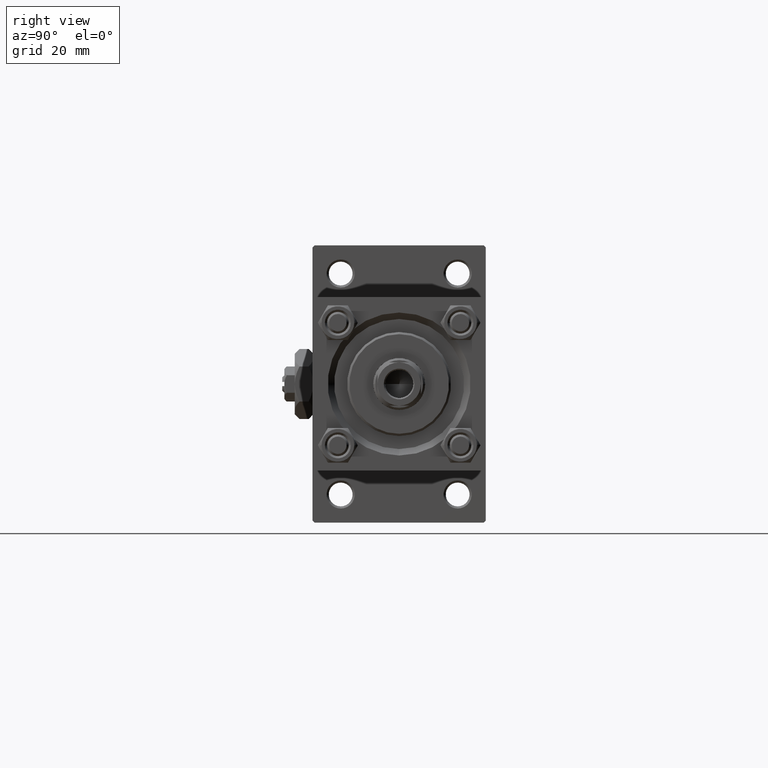
[diagram: clean part render]
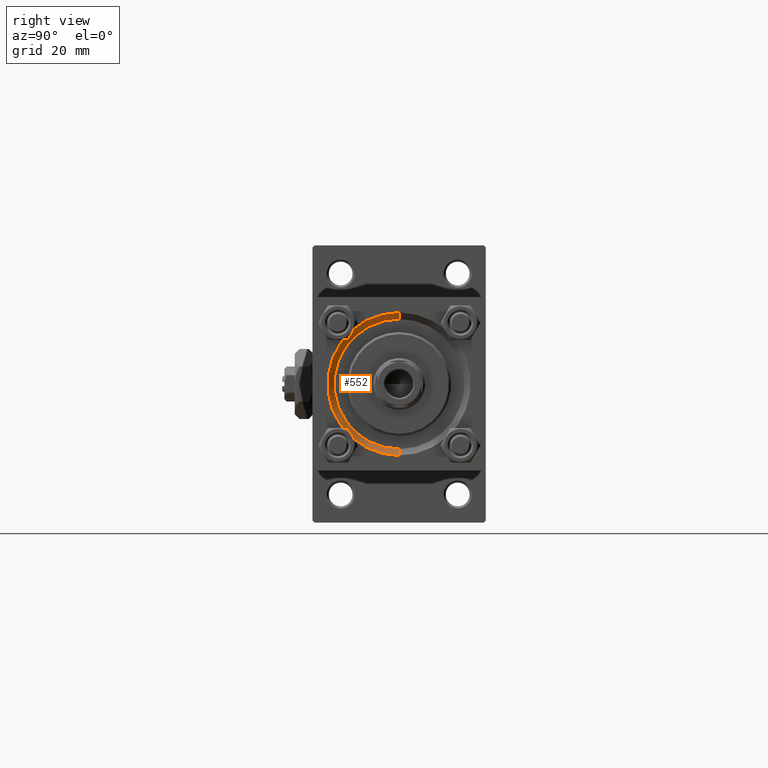
[diagram: same view with one face highlighted and labeled with its STEP entity id]
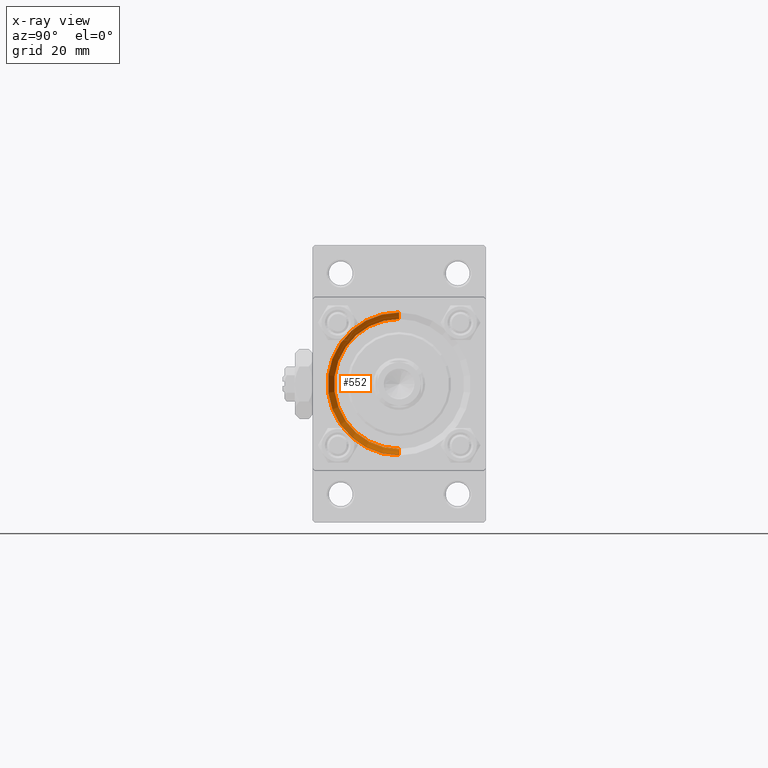
[diagram: x-ray of the same camera — body ghosted, the highlighted face saturated]
A machine part, right view. The second image highlights one B-rep face of the part: STEP entity #552.
The next image is the same camera in x-ray: the body ghosted, the highlighted face saturated — about 0% of this face is hidden behind the body in this view.
In plain terms, the highlighted conical surface has half-angle 45 deg.
Its self-contained STEP definition (entity closure, byte-faithful):
#334 = DIRECTION ( 'NONE',  ( 0.000000000000000000, 0.000000000000000000, 1.000000000000000000 ) ) ;
#552 = ADVANCED_FACE ( 'NONE', ( #29994 ), #35628, .F. ) ;
#845 = DIRECTION ( 'NONE',  ( -1.000000000000000000, -0.000000000000000000, -0.000000000000000000 ) ) ;
#1554 = EDGE_CURVE ( 'NONE', #5576, #18529, #20643, .T. ) ;
#5576 = VERTEX_POINT ( 'NONE', #48779 ) ;
#5639 = EDGE_CURVE ( 'NONE', #5576, #40982, #25282, .T. ) ;
#6386 = AXIS2_PLACEMENT_3D ( 'NONE', #35559, #845, #334 ) ;
#7323 = AXIS2_PLACEMENT_3D ( 'NONE', #33394, #50359, #49591 ) ;
#7817 = DIRECTION ( 'NONE',  ( 1.000000000000000000, 0.000000000000000000, 0.000000000000000000 ) ) ;
#7980 = CARTESIAN_POINT ( 'NONE',  ( 134.0000000000000000, 2.020667218593131128E-15, 16.49999999999998579 ) ) ;
#10233 = ORIENTED_EDGE ( 'NONE', *, *, #1554, .F. ) ;
#10945 = CARTESIAN_POINT ( 'NONE',  ( 132.5000000000000000, 0.000000000000000000, -15.00000000000000000 ) ) ;
#18529 = VERTEX_POINT ( 'NONE', #10945 ) ;
#20047 = CARTESIAN_POINT ( 'NONE',  ( 132.5000000000000000, 0.000000000000000000, 0.000000000000000000 ) ) ;
#20643 = CIRCLE ( 'NONE', #21514, 15.00000000000000000 ) ;
#21386 = EDGE_LOOP ( 'NONE', ( #10233, #21480, #36535, #22972 ) ) ;
#21480 = ORIENTED_EDGE ( 'NONE', *, *, #5639, .T. ) ;
#21514 = AXIS2_PLACEMENT_3D ( 'NONE', #20047, #7817, #39885 ) ;
#22972 = ORIENTED_EDGE ( 'NONE', *, *, #33302, .F. ) ;
#25282 = LINE ( 'NONE', #33861, #36525 ) ;
#26665 = CARTESIAN_POINT ( 'NONE',  ( 132.5000000000000000, 0.000000000000000000, -15.00000000000000000 ) ) ;
#29994 = FACE_OUTER_BOUND ( 'NONE', #21386, .T. ) ;
#33302 = EDGE_CURVE ( 'NONE', #18529, #37157, #33966, .T. ) ;
#33394 = CARTESIAN_POINT ( 'NONE',  ( 132.5000000000000000, 0.000000000000000000, 0.000000000000000000 ) ) ;
#33861 = CARTESIAN_POINT ( 'NONE',  ( 132.5000000000000000, 1.836970198721029589E-15, 15.00000000000000000 ) ) ;
#33966 = LINE ( 'NONE', #26665, #37901 ) ;
#35301 = CARTESIAN_POINT ( 'NONE',  ( 134.0000000000000000, 0.000000000000000000, -16.49999999999998579 ) ) ;
#35559 = CARTESIAN_POINT ( 'NONE',  ( 134.0000000000000000, 0.000000000000000000, 0.000000000000000000 ) ) ;
#35628 = CONICAL_SURFACE ( 'NONE', #7323, 15.00000000000000000, 0.7853981633974437271 ) ;
#36525 = VECTOR ( 'NONE', #50055, 1000.000000000000114 ) ;
#36535 = ORIENTED_EDGE ( 'NONE', *, *, #37201, .F. ) ;
#37157 = VERTEX_POINT ( 'NONE', #35301 ) ;
#37201 = EDGE_CURVE ( 'NONE', #37157, #40982, #43882, .T. ) ;
#37901 = VECTOR ( 'NONE', #49913, 1000.000000000000114 ) ;
#39885 = DIRECTION ( 'NONE',  ( 0.000000000000000000, 0.000000000000000000, 1.000000000000000000 ) ) ;
#40982 = VERTEX_POINT ( 'NONE', #7980 ) ;
#43882 = CIRCLE ( 'NONE', #6386, 16.49999999999998579 ) ;
#48779 = CARTESIAN_POINT ( 'NONE',  ( 132.5000000000000000, 1.836970198721029589E-15, 15.00000000000000000 ) ) ;
#49591 = DIRECTION ( 'NONE',  ( 0.000000000000000000, 0.000000000000000000, -1.000000000000000000 ) ) ;
#49913 = DIRECTION ( 'NONE',  ( 0.7071067811865507924, 0.000000000000000000, -0.7071067811865441310 ) ) ;
#50055 = DIRECTION ( 'NONE',  ( 0.7071067811865507924, 8.659560562354892183E-17, 0.7071067811865441310 ) ) ;
#50359 = DIRECTION ( 'NONE',  ( 1.000000000000000000, 0.000000000000000000, 0.000000000000000000 ) ) ;